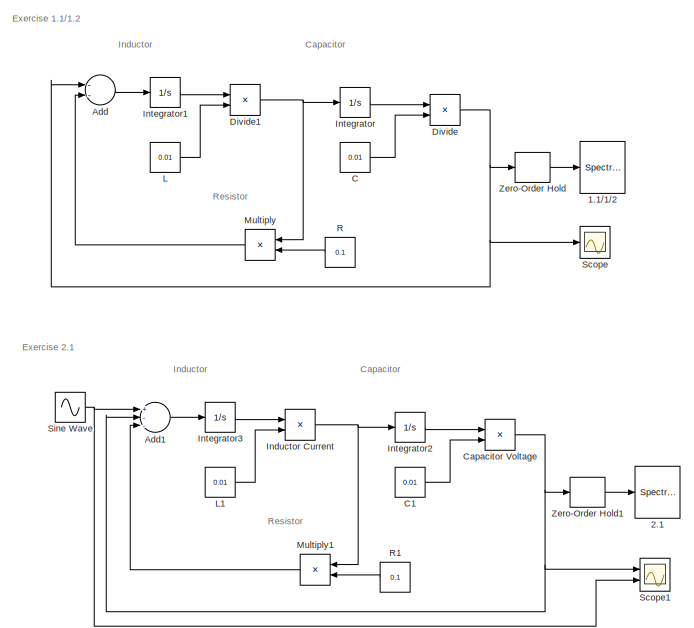
[diagram: root canvas - part 1/2, top center region]
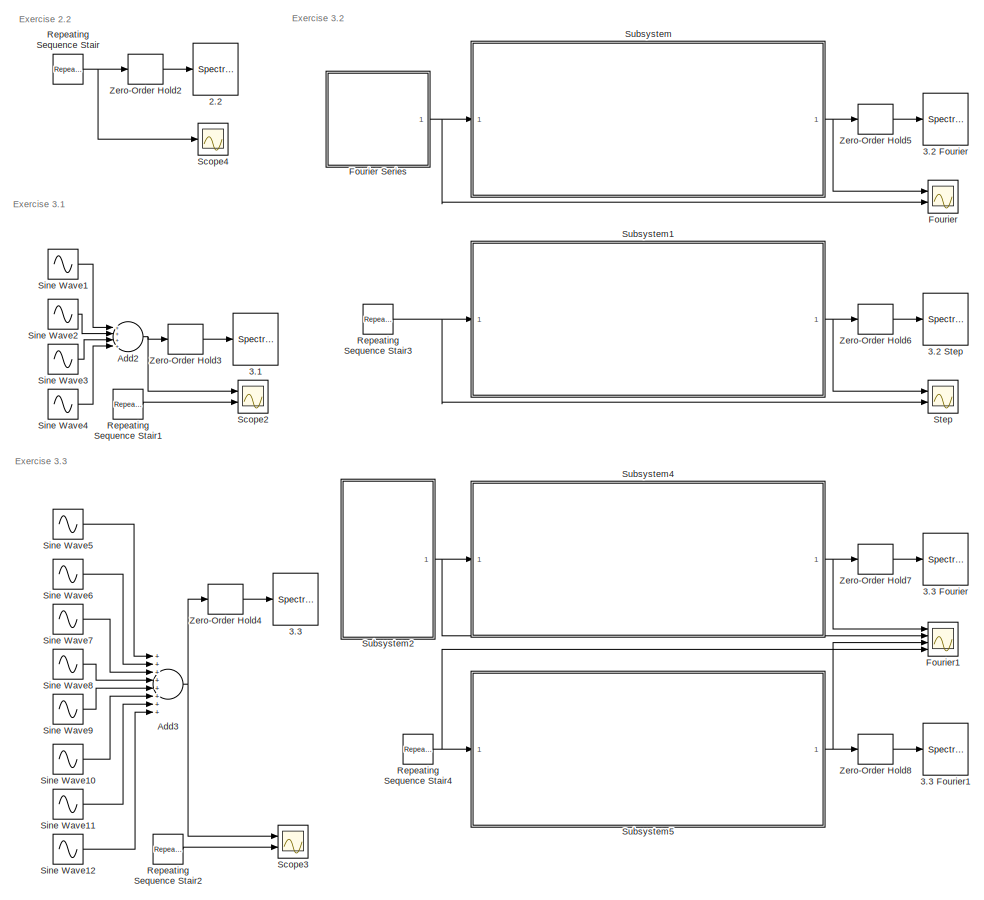
[diagram: root canvas - part 2/2, full width, bottom band]
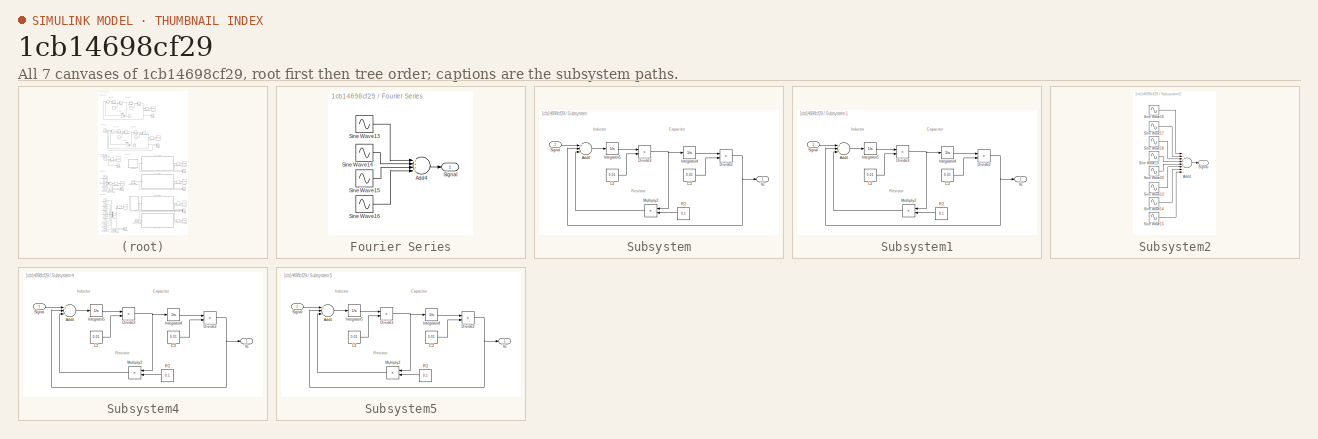
[diagram: thumbnail index - all 7 canvases of the model, root first then tree order]
MODEL slx_1cb14698cf29
KIND model
CONFIG AbsTol = auto
CONFIG EnableMultiTasking = off
CONFIG FixedStep = auto
CONFIG MaxStep = auto
CONFIG MinStep = auto
CONFIG RelTol = 1e-3
CONFIG SampleTimeConstraint = Unconstrained
CONFIG Solver = VariableStepAuto
CONFIG SolverName = VariableStepAuto
CONFIG StartTime = 0.0
CONFIG StopTime = 2
BLOCK [SpectrumAnalyzer] 1.1//1//2
  Commented = on
  Ports = [1]
  ScopeSpecificationString = spbscopes.SpectrumAnalyzerBlockCfg('CurrentConfiguration', extmgr.ConfigurationSet(extmgr.Configuration('Core','General UI',true),extmgr.Configuration('Core','Source UI',true),extmgr.Configuration('Sources','WiredSimulink',true),extmgr.Configuration('Visuals','Spectrum',true,'AxesProperties',struct('Color',{[0 0 0],[0 0 0]},'XColor',{[0.686274509803922 0.686274509803922 0.686274509803922],[0.68627...<+2005ch>
BLOCK [SpectrumAnalyzer] 2.1
  Commented = on
  Ports = [1]
  ScopeSpecificationString = spbscopes.SpectrumAnalyzerBlockCfg('CurrentConfiguration', extmgr.ConfigurationSet(extmgr.Configuration('Core','General UI',true),extmgr.Configuration('Core','Source UI',true),extmgr.Configuration('Sources','WiredSimulink',true),extmgr.Configuration('Visuals','Spectrum',true,'AxesProperties',struct('Color',{[0 0 0],[0 0 0]},'XColor',{[0.686274509803922 0.686274509803922 0.686274509803922],[0.68627...<+1916ch>
BLOCK [SpectrumAnalyzer] 2.2
  Commented = on
  Ports = [1]
  ScopeSpecificationString = spbscopes.SpectrumAnalyzerBlockCfg('CurrentConfiguration', extmgr.ConfigurationSet(extmgr.Configuration('Core','General UI',true),extmgr.Configuration('Core','Source UI',true),extmgr.Configuration('Sources','WiredSimulink',true),extmgr.Configuration('Sources','SimulinkEvent',false),extmgr.Configuration('Sources','SPTool',false),extmgr.Configuration('Sources','File',false),extmgr.Configuration('Sou...<+3307ch>
BLOCK [SpectrumAnalyzer] 3.1
  Commented = on
  Ports = [1]
  ScopeSpecificationString = spbscopes.SpectrumAnalyzerBlockCfg('CurrentConfiguration', extmgr.ConfigurationSet(extmgr.Configuration('Core','General UI',true),extmgr.Configuration('Core','Source UI',true),extmgr.Configuration('Sources','WiredSimulink',true),extmgr.Configuration('Visuals','Spectrum',true,'AxesProperties',struct('Color',{[0 0 0],[0 0 0]},'XColor',{[0.686274509803922 0.686274509803922 0.686274509803922],[0.68627...<+1917ch>
BLOCK [SpectrumAnalyzer] 3.2 Fourier
  Commented = on
  Ports = [1]
  ScopeSpecificationString = spbscopes.SpectrumAnalyzerBlockCfg('CurrentConfiguration', extmgr.ConfigurationSet(extmgr.Configuration('Core','General UI',true),extmgr.Configuration('Core','Source UI',true),extmgr.Configuration('Sources','WiredSimulink',true),extmgr.Configuration('Visuals','Spectrum',true,'AxesProperties',struct('Color',{[0 0 0],[0 0 0]},'XColor',{[0.686274509803922 0.686274509803922 0.686274509803922],[0.68627...<+1937ch>
BLOCK [SpectrumAnalyzer] 3.2 Step
  Commented = on
  Ports = [1]
  ScopeSpecificationString = spbscopes.SpectrumAnalyzerBlockCfg('CurrentConfiguration', extmgr.ConfigurationSet(extmgr.Configuration('Core','General UI',true),extmgr.Configuration('Core','Source UI',true),extmgr.Configuration('Sources','WiredSimulink',true),extmgr.Configuration('Visuals','Spectrum',true,'AxesProperties',struct('Color',{[0 0 0],[0 0 0]},'XColor',{[0.686274509803922 0.686274509803922 0.686274509803922],[0.68627...<+1938ch>
BLOCK [SpectrumAnalyzer] 3.3
  Commented = on
  Ports = [1]
  ScopeSpecificationString = spbscopes.SpectrumAnalyzerBlockCfg('CurrentConfiguration', extmgr.ConfigurationSet(extmgr.Configuration('Core','General UI',true),extmgr.Configuration('Core','Source UI',true),extmgr.Configuration('Sources','WiredSimulink',true),extmgr.Configuration('Visuals','Spectrum',true,'AxesProperties',struct('Color',{[0 0 0],[0 0 0]},'XColor',{[0.686274509803922 0.686274509803922 0.686274509803922],[0.68627...<+1689ch>
BLOCK [SpectrumAnalyzer] 3.3 Fourier
  Commented = on
  Ports = [1]
  ScopeSpecificationString = spbscopes.SpectrumAnalyzerBlockCfg('CurrentConfiguration', extmgr.ConfigurationSet(extmgr.Configuration('Core','General UI',true),extmgr.Configuration('Core','Source UI',true),extmgr.Configuration('Sources','WiredSimulink',true),extmgr.Configuration('Visuals','Spectrum',true,'AxesProperties',struct('Color',{[0 0 0],[0 0 0]},'XColor',{[0.686274509803922 0.686274509803922 0.686274509803922],[0.68627...<+1918ch>
BLOCK [SpectrumAnalyzer] 3.3 Fourier1
  Commented = on
  Ports = [1]
  ScopeSpecificationString = spbscopes.SpectrumAnalyzerBlockCfg('CurrentConfiguration', extmgr.ConfigurationSet(extmgr.Configuration('Core','General UI',true),extmgr.Configuration('Core','Source UI',true),extmgr.Configuration('Sources','WiredSimulink',true),extmgr.Configuration('Visuals','Spectrum',true,'AxesProperties',struct('Color',{[0 0 0],[0 0 0]},'XColor',{[0.686274509803922 0.686274509803922 0.686274509803922],[0.68627...<+1917ch>
BLOCK [Sum] Add
  InputSameDT = off
  Inputs = --
  OutDataTypeStr = Inherit: Inherit via internal rule
  Ports = [2, 1]
  SaturateOnIntegerOverflow = off
BLOCK [Sum] Add1
  InputSameDT = off
  Inputs = +--
  OutDataTypeStr = Inherit: Inherit via internal rule
  Ports = [3, 1]
  SaturateOnIntegerOverflow = off
BLOCK [Sum] Add2
  InputSameDT = off
  Inputs = ++++
  OutDataTypeStr = Inherit: Inherit via internal rule
  Ports = [4, 1]
  SaturateOnIntegerOverflow = off
BLOCK [Sum] Add3
  InputSameDT = off
  Inputs = ++++++++
  OutDataTypeStr = Inherit: Inherit via internal rule
  Ports = [8, 1]
  SaturateOnIntegerOverflow = off
BLOCK [Constant] C
  Value = 0.01
BLOCK [Constant] C1
  Value = 0.01
BLOCK [Product] Capacitor Voltage
  InputSameDT = off
  Inputs = */
  OutDataTypeStr = Inherit: Inherit via internal rule
  Ports = [2, 1]
  RndMeth = Floor
  SaturateOnIntegerOverflow = off
BLOCK [Product] Divide
  InputSameDT = off
  Inputs = */
  OutDataTypeStr = Inherit: Inherit via internal rule
  Ports = [2, 1]
  RndMeth = Floor
  SaturateOnIntegerOverflow = off
BLOCK [Product] Divide1
  InputSameDT = off
  Inputs = */
  OutDataTypeStr = Inherit: Inherit via internal rule
  Ports = [2, 1]
  RndMeth = Floor
  SaturateOnIntegerOverflow = off
BLOCK [Scope] Fourier
  Floating = off
  NumInputPorts = 2
  Ports = [2]
  ScopeSpecificationString = Simulink.scopes.TimeScopeBlockCfg('CurrentConfiguration', extmgr.ConfigurationSet(extmgr.Configuration('Core','General UI',true),extmgr.Configuration('Core','Source UI',true),extmgr.Configuration('Sources','WiredSimulink',true,'DataLoggingVariableName','ScopeData3'),extmgr.Configuration('Visuals','Time Domain',true,'SerializedDisplays',{struct('MinYLimReal','-7.84282','MaxYLimReal','8.91416','YLab...<+2162ch>
BLOCK [SubSystem] Fourier Series
  Ports = [0, 1]
  RequestExecContextInheritance = off
BLOCK [Sum] Fourier Series/Add4
  InputSameDT = off
  Inputs = ++++
  OutDataTypeStr = Inherit: Inherit via internal rule
  Ports = [4, 1]
  SaturateOnIntegerOverflow = off
BLOCK [Outport] Fourier Series/Signal
  IconDisplay = Port number
BLOCK [Sin] Fourier Series/Sine Wave13
  Amplitude = 4/(1*pi)
  Frequency = 64*pi*1
  Ports = [0, 1]
  SampleTime = 0
BLOCK [Sin] Fourier Series/Sine Wave14
  Amplitude = 4/(3*pi)
  Frequency = 64*pi*3
  Ports = [0, 1]
  SampleTime = 0
BLOCK [Sin] Fourier Series/Sine Wave15
  Amplitude = 4/(5*pi)
  Frequency = 64*pi*5
  Ports = [0, 1]
  SampleTime = 0
BLOCK [Sin] Fourier Series/Sine Wave16
  Amplitude = 4/(7*pi)
  Frequency = 64*pi*7
  Ports = [0, 1]
  SampleTime = 0
BLOCK [Scope] Fourier1
  Floating = off
  NumInputPorts = 4
  Ports = [4]
  ScopeSpecificationString = Simulink.scopes.TimeScopeBlockCfg('CurrentConfiguration', extmgr.ConfigurationSet(extmgr.Configuration('Core','General UI',true),extmgr.Configuration('Core','Source UI',true),extmgr.Configuration('Sources','WiredSimulink',true,'DataLoggingVariableName','ScopeData5'),extmgr.Configuration('Visuals','Time Domain',true,'SerializedDisplays',{struct('MinYLimReal','-20','MaxYLimReal','20','YLabelReal',''...<+3392ch>
BLOCK [Product] Inductor Current
  InputSameDT = off
  Inputs = */
  OutDataTypeStr = Inherit: Inherit via internal rule
  Ports = [2, 1]
  RndMeth = Floor
  SaturateOnIntegerOverflow = off
BLOCK [Integrator] Integrator
  InitialCondition = 0.1
  Ports = [1, 1]
BLOCK [Integrator] Integrator1
  InitialCondition = 0.1
  Ports = [1, 1]
BLOCK [Integrator] Integrator2
  Ports = [1, 1]
BLOCK [Integrator] Integrator3
  Ports = [1, 1]
BLOCK [Constant] L
  Value = 0.01
BLOCK [Constant] L1
  Value = 0.01
BLOCK [Product] Multiply
  InputSameDT = off
  OutDataTypeStr = Inherit: Inherit via internal rule
  Ports = [2, 1]
  RndMeth = Floor
  SaturateOnIntegerOverflow = off
BLOCK [Product] Multiply1
  InputSameDT = off
  OutDataTypeStr = Inherit: Inherit via internal rule
  Ports = [2, 1]
  RndMeth = Floor
  SaturateOnIntegerOverflow = off
BLOCK [Constant] R
  Value = 0.1
BLOCK [Constant] R1
  Value = 0.1
BLOCK [Reference] Repeating Sequence Stair  REF=simulink/Sources/Repeating
Sequence
Stair
  Ports = [0, 1]
  SourceBlock = simulink/Sources/Repeating\nSequence\nStair
  SourceProductBaseCode = SL
  SourceProductName = Simulink
  SourceType = Repeating Sequence Stair
BLOCK [Reference] Repeating Sequence Stair1  REF=simulink/Sources/Repeating
Sequence
Stair
  Ports = [0, 1]
  SourceBlock = simulink/Sources/Repeating\nSequence\nStair
  SourceProductBaseCode = SL
  SourceProductName = Simulink
  SourceType = Repeating Sequence Stair
BLOCK [Reference] Repeating Sequence Stair2  REF=simulink/Sources/Repeating
Sequence
Stair
  Ports = [0, 1]
  SourceBlock = simulink/Sources/Repeating\nSequence\nStair
  SourceProductBaseCode = SL
  SourceProductName = Simulink
  SourceType = Repeating Sequence Stair
BLOCK [Reference] Repeating Sequence Stair3  REF=simulink/Sources/Repeating
Sequence
Stair
  Ports = [0, 1]
  SourceBlock = simulink/Sources/Repeating\nSequence\nStair
  SourceProductBaseCode = SL
  SourceProductName = Simulink
  SourceType = Repeating Sequence Stair
BLOCK [Reference] Repeating Sequence Stair4  REF=simulink/Sources/Repeating
Sequence
Stair
  Ports = [0, 1]
  SourceBlock = simulink/Sources/Repeating\nSequence\nStair
  SourceProductBaseCode = SL
  SourceProductName = Simulink
  SourceType = Repeating Sequence Stair
BLOCK [Scope] Scope
  Floating = off
  NumInputPorts = 1
  Ports = [1]
  ScopeSpecificationString = Simulink.scopes.TimeScopeBlockCfg('CurrentConfiguration', extmgr.ConfigurationSet(extmgr.Configuration('Core','General UI',true),extmgr.Configuration('Core','Source UI',true),extmgr.Configuration('Sources','WiredSimulink',true),extmgr.Configuration('Visuals','Time Domain',true,'SerializedDisplays',{struct('MinYLimReal','-15.1536','MaxYLimReal','17.18331','YLabelReal','','MinYLimMag','0.00000','Max...<+1379ch>
BLOCK [Scope] Scope1
  Floating = off
  NumInputPorts = 2
  Ports = [2]
  ScopeSpecificationString = Simulink.scopes.TimeScopeBlockCfg('CurrentConfiguration', extmgr.ConfigurationSet(extmgr.Configuration('Core','General UI',true),extmgr.Configuration('Core','Source UI',true),extmgr.Configuration('Sources','WiredSimulink',true,'DataLoggingVariableName','ScopeData1'),extmgr.Configuration('Visuals','Time Domain',true,'SerializedDisplays',{struct('MinYLimReal','-12.49626','MaxYLimReal','12.49625','YL...<+2349ch>
BLOCK [Scope] Scope2
  Floating = off
  NumInputPorts = 2
  Ports = [2]
  ScopeSpecificationString = Simulink.scopes.TimeScopeBlockCfg('CurrentConfiguration', extmgr.ConfigurationSet(extmgr.Configuration('Core','General UI',true),extmgr.Configuration('Core','Source UI',true),extmgr.Configuration('Sources','WiredSimulink',true,'DataLoggingVariableName','ScopeData1'),extmgr.Configuration('Visuals','Time Domain',true,'SerializedDisplays',{struct('MinYLimReal','-2','MaxYLimReal','2','YLabelReal','','...<+2118ch>
BLOCK [Scope] Scope3
  Floating = off
  NumInputPorts = 2
  Ports = [2]
  ScopeSpecificationString = Simulink.scopes.TimeScopeBlockCfg('CurrentConfiguration', extmgr.ConfigurationSet(extmgr.Configuration('Core','General UI',true),extmgr.Configuration('Core','Source UI',true),extmgr.Configuration('Sources','WiredSimulink',true,'DataLoggingVariableName','ScopeData2'),extmgr.Configuration('Visuals','Time Domain',true,'SerializedDisplays',{struct('MinYLimReal','-1.47536','MaxYLimReal','1.47536','YLab...<+2039ch>
BLOCK [Scope] Scope4
  Floating = off
  NumInputPorts = 1
  Ports = [1]
  ScopeSpecificationString = Simulink.scopes.TimeScopeBlockCfg('CurrentConfiguration', extmgr.ConfigurationSet(extmgr.Configuration('Core','General UI',true),extmgr.Configuration('Core','Source UI',true),extmgr.Configuration('Sources','WiredSimulink',true,'DataLoggingVariableName','ScopeData1'),extmgr.Configuration('Visuals','Time Domain',true,'SerializedDisplays',{struct('MinYLimReal','-1.25','MaxYLimReal','1.25','YLabelReal...<+1365ch>
BLOCK [Sin] Sine Wave
  Frequency = 100*2
  Ports = [0, 1]
  SampleTime = 0
BLOCK [Sin] Sine Wave1
  Amplitude = 4/(1*pi)
  Frequency = 64*pi*1
  Ports = [0, 1]
  SampleTime = 0
BLOCK [Sin] Sine Wave10
  Amplitude = 4/(11*pi)
  Frequency = 64*pi*11
  Ports = [0, 1]
  SampleTime = 0
BLOCK [Sin] Sine Wave11
  Amplitude = 4/(13*pi)
  Frequency = 64*pi*13
  Ports = [0, 1]
  SampleTime = 0
BLOCK [Sin] Sine Wave12
  Amplitude = 4/(15*pi)
  Frequency = 64*pi*15
  Ports = [0, 1]
  SampleTime = 0
BLOCK [Sin] Sine Wave2
  Amplitude = 4/(3*pi)
  Frequency = 64*pi*3
  Ports = [0, 1]
  SampleTime = 0
BLOCK [Sin] Sine Wave3
  Amplitude = 4/(5*pi)
  Frequency = 64*pi*5
  Ports = [0, 1]
  SampleTime = 0
BLOCK [Sin] Sine Wave4
  Amplitude = 4/(7*pi)
  Frequency = 64*pi*7
  Ports = [0, 1]
  SampleTime = 0
BLOCK [Sin] Sine Wave5
  Amplitude = 4/(1*pi)
  Frequency = 64*pi*1
  Ports = [0, 1]
  SampleTime = 0
BLOCK [Sin] Sine Wave6
  Amplitude = 4/(3*pi)
  Frequency = 64*pi*3
  Ports = [0, 1]
  SampleTime = 0
BLOCK [Sin] Sine Wave7
  Amplitude = 4/(5*pi)
  Frequency = 64*pi*5
  Ports = [0, 1]
  SampleTime = 0
BLOCK [Sin] Sine Wave8
  Amplitude = 4/(7*pi)
  Frequency = 64*pi*7
  Ports = [0, 1]
  SampleTime = 0
BLOCK [Sin] Sine Wave9
  Amplitude = 4/(9*pi)
  Frequency = 64*pi*9
  Ports = [0, 1]
  SampleTime = 0
BLOCK [Scope] Step
  Floating = off
  NumInputPorts = 2
  Ports = [2]
  ScopeSpecificationString = Simulink.scopes.TimeScopeBlockCfg('CurrentConfiguration', extmgr.ConfigurationSet(extmgr.Configuration('Core','General UI',true),extmgr.Configuration('Core','Source UI',true),extmgr.Configuration('Sources','WiredSimulink',true,'DataLoggingVariableName','ScopeData4'),extmgr.Configuration('Visuals','Time Domain',true,'SerializedDisplays',{struct('MinYLimReal','-7.8777','MaxYLimReal','8.95609','YLabe...<+2171ch>
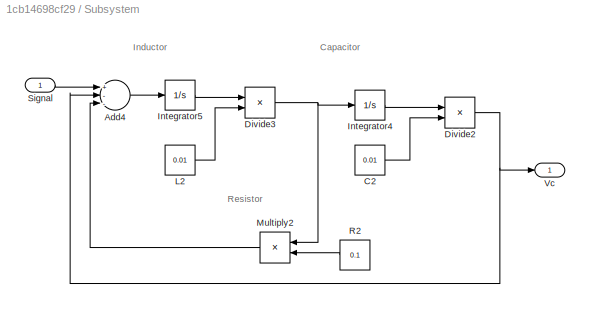
BLOCK [SubSystem] Subsystem
  Ports = [1, 1]
  RequestExecContextInheritance = off
BLOCK [Sum] Subsystem/Add4
  InputSameDT = off
  Inputs = +--
  OutDataTypeStr = Inherit: Inherit via internal rule
  Ports = [3, 1]
  SaturateOnIntegerOverflow = off
BLOCK [Constant] Subsystem/C2
  Value = 0.01
BLOCK [Product] Subsystem/Divide2
  InputSameDT = off
  Inputs = */
  OutDataTypeStr = Inherit: Inherit via internal rule
  Ports = [2, 1]
  RndMeth = Floor
  SaturateOnIntegerOverflow = off
BLOCK [Product] Subsystem/Divide3
  InputSameDT = off
  Inputs = */
  OutDataTypeStr = Inherit: Inherit via internal rule
  Ports = [2, 1]
  RndMeth = Floor
  SaturateOnIntegerOverflow = off
BLOCK [Integrator] Subsystem/Integrator4
  InitialCondition = 0.1
  Ports = [1, 1]
BLOCK [Integrator] Subsystem/Integrator5
  InitialCondition = 0.1
  Ports = [1, 1]
BLOCK [Constant] Subsystem/L2
  Value = 0.01
BLOCK [Product] Subsystem/Multiply2
  InputSameDT = off
  OutDataTypeStr = Inherit: Inherit via internal rule
  Ports = [2, 1]
  RndMeth = Floor
  SaturateOnIntegerOverflow = off
BLOCK [Constant] Subsystem/R2
  Value = 0.1
BLOCK [Inport] Subsystem/Signal
  IconDisplay = Port number
BLOCK [Outport] Subsystem/Vc
  IconDisplay = Port number
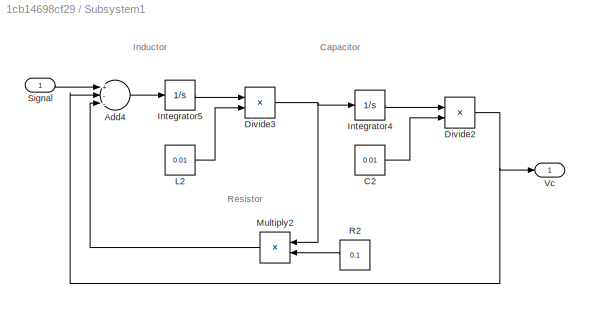
BLOCK [SubSystem] Subsystem1
  Ports = [1, 1]
  RequestExecContextInheritance = off
BLOCK [Sum] Subsystem1/Add4
  InputSameDT = off
  Inputs = +--
  OutDataTypeStr = Inherit: Inherit via internal rule
  Ports = [3, 1]
  SaturateOnIntegerOverflow = off
BLOCK [Constant] Subsystem1/C2
  Value = 0.01
BLOCK [Product] Subsystem1/Divide2
  InputSameDT = off
  Inputs = */
  OutDataTypeStr = Inherit: Inherit via internal rule
  Ports = [2, 1]
  RndMeth = Floor
  SaturateOnIntegerOverflow = off
BLOCK [Product] Subsystem1/Divide3
  InputSameDT = off
  Inputs = */
  OutDataTypeStr = Inherit: Inherit via internal rule
  Ports = [2, 1]
  RndMeth = Floor
  SaturateOnIntegerOverflow = off
BLOCK [Integrator] Subsystem1/Integrator4
  InitialCondition = 0.1
  Ports = [1, 1]
BLOCK [Integrator] Subsystem1/Integrator5
  InitialCondition = 0.1
  Ports = [1, 1]
BLOCK [Constant] Subsystem1/L2
  Value = 0.01
BLOCK [Product] Subsystem1/Multiply2
  InputSameDT = off
  OutDataTypeStr = Inherit: Inherit via internal rule
  Ports = [2, 1]
  RndMeth = Floor
  SaturateOnIntegerOverflow = off
BLOCK [Constant] Subsystem1/R2
  Value = 0.1
BLOCK [Inport] Subsystem1/Signal
  IconDisplay = Port number
BLOCK [Outport] Subsystem1/Vc
  IconDisplay = Port number
BLOCK [SubSystem] Subsystem2
  Ports = [0, 1]
  RequestExecContextInheritance = off
BLOCK [Sum] Subsystem2/Add4
  InputSameDT = off
  Inputs = ++++++++
  OutDataTypeStr = Inherit: Inherit via internal rule
  Ports = [8, 1]
  SaturateOnIntegerOverflow = off
BLOCK [Outport] Subsystem2/Signal
  IconDisplay = Port number
BLOCK [Sin] Subsystem2/Sine Wave13
  Amplitude = 4/(11*pi)
  Frequency = 64*pi*11
  Ports = [0, 1]
  SampleTime = 0
BLOCK [Sin] Subsystem2/Sine Wave14
  Amplitude = 4/(13*pi)
  Frequency = 64*pi*13
  Ports = [0, 1]
  SampleTime = 0
BLOCK [Sin] Subsystem2/Sine Wave15
  Amplitude = 4/(15*pi)
  Frequency = 64*pi*15
  Ports = [0, 1]
  SampleTime = 0
BLOCK [Sin] Subsystem2/Sine Wave16
  Amplitude = 4/(1*pi)
  Frequency = 64*pi*1
  Ports = [0, 1]
  SampleTime = 0
BLOCK [Sin] Subsystem2/Sine Wave17
  Amplitude = 4/(3*pi)
  Frequency = 64*pi*3
  Ports = [0, 1]
  SampleTime = 0
BLOCK [Sin] Subsystem2/Sine Wave18
  Amplitude = 4/(5*pi)
  Frequency = 64*pi*5
  Ports = [0, 1]
  SampleTime = 0
BLOCK [Sin] Subsystem2/Sine Wave19
  Amplitude = 4/(7*pi)
  Frequency = 64*pi*7
  Ports = [0, 1]
  SampleTime = 0
BLOCK [Sin] Subsystem2/Sine Wave20
  Amplitude = 4/(9*pi)
  Frequency = 64*pi*9
  Ports = [0, 1]
  SampleTime = 0
BLOCK [SubSystem] Subsystem4
  Ports = [1, 1]
  RequestExecContextInheritance = off
BLOCK [Sum] Subsystem4/Add4
  InputSameDT = off
  Inputs = +--
  OutDataTypeStr = Inherit: Inherit via internal rule
  Ports = [3, 1]
  SaturateOnIntegerOverflow = off
BLOCK [Constant] Subsystem4/C2
  Value = 0.01
BLOCK [Product] Subsystem4/Divide2
  InputSameDT = off
  Inputs = */
  OutDataTypeStr = Inherit: Inherit via internal rule
  Ports = [2, 1]
  RndMeth = Floor
  SaturateOnIntegerOverflow = off
BLOCK [Product] Subsystem4/Divide3
  InputSameDT = off
  Inputs = */
  OutDataTypeStr = Inherit: Inherit via internal rule
  Ports = [2, 1]
  RndMeth = Floor
  SaturateOnIntegerOverflow = off
BLOCK [Integrator] Subsystem4/Integrator4
  InitialCondition = 0.1
  Ports = [1, 1]
BLOCK [Integrator] Subsystem4/Integrator5
  InitialCondition = 0.1
  Ports = [1, 1]
BLOCK [Constant] Subsystem4/L2
  Value = 0.01
BLOCK [Product] Subsystem4/Multiply2
  InputSameDT = off
  OutDataTypeStr = Inherit: Inherit via internal rule
  Ports = [2, 1]
  RndMeth = Floor
  SaturateOnIntegerOverflow = off
BLOCK [Constant] Subsystem4/R2
  Value = 0.1
BLOCK [Inport] Subsystem4/Signal
  IconDisplay = Port number
BLOCK [Outport] Subsystem4/Vc
  IconDisplay = Port number
BLOCK [SubSystem] Subsystem5
  Ports = [1, 1]
  RequestExecContextInheritance = off
BLOCK [Sum] Subsystem5/Add4
  InputSameDT = off
  Inputs = +--
  OutDataTypeStr = Inherit: Inherit via internal rule
  Ports = [3, 1]
  SaturateOnIntegerOverflow = off
BLOCK [Constant] Subsystem5/C2
  Value = 0.01
BLOCK [Product] Subsystem5/Divide2
  InputSameDT = off
  Inputs = */
  OutDataTypeStr = Inherit: Inherit via internal rule
  Ports = [2, 1]
  RndMeth = Floor
  SaturateOnIntegerOverflow = off
BLOCK [Product] Subsystem5/Divide3
  InputSameDT = off
  Inputs = */
  OutDataTypeStr = Inherit: Inherit via internal rule
  Ports = [2, 1]
  RndMeth = Floor
  SaturateOnIntegerOverflow = off
BLOCK [Integrator] Subsystem5/Integrator4
  InitialCondition = 0.1
  Ports = [1, 1]
BLOCK [Integrator] Subsystem5/Integrator5
  InitialCondition = 0.1
  Ports = [1, 1]
BLOCK [Constant] Subsystem5/L2
  Value = 0.01
BLOCK [Product] Subsystem5/Multiply2
  InputSameDT = off
  OutDataTypeStr = Inherit: Inherit via internal rule
  Ports = [2, 1]
  RndMeth = Floor
  SaturateOnIntegerOverflow = off
BLOCK [Constant] Subsystem5/R2
  Value = 0.1
BLOCK [Inport] Subsystem5/Signal
  IconDisplay = Port number
BLOCK [Outport] Subsystem5/Vc
  IconDisplay = Port number
BLOCK [ZeroOrderHold] Zero-Order Hold
  SampleTime = 2^-10
BLOCK [ZeroOrderHold] Zero-Order Hold1
  SampleTime = 2^-10
BLOCK [ZeroOrderHold] Zero-Order Hold2
  SampleTime = 2^-10
BLOCK [ZeroOrderHold] Zero-Order Hold3
  SampleTime = 2^-10
BLOCK [ZeroOrderHold] Zero-Order Hold4
  SampleTime = 2^-10
BLOCK [ZeroOrderHold] Zero-Order Hold5
  SampleTime = 2^-10
BLOCK [ZeroOrderHold] Zero-Order Hold6
  SampleTime = 2^-10
BLOCK [ZeroOrderHold] Zero-Order Hold7
  SampleTime = 2^-10
BLOCK [ZeroOrderHold] Zero-Order Hold8
  SampleTime = 2^-10
ANNOTATION (root): Capacitor
ANNOTATION (root): Exercise 1.1/1.2
ANNOTATION (root): Exercise 2.1
ANNOTATION (root): Exercise 2.2
ANNOTATION (root): Exercise 3.1
ANNOTATION (root): Exercise 3.2
ANNOTATION (root): Exercise 3.3
ANNOTATION (root): Inductor
ANNOTATION (root): Resistor
ANNOTATION Subsystem: Capacitor
ANNOTATION Subsystem: Inductor
ANNOTATION Subsystem: Resistor
ANNOTATION Subsystem1: Capacitor
ANNOTATION Subsystem1: Inductor
ANNOTATION Subsystem1: Resistor
ANNOTATION Subsystem4: Capacitor
ANNOTATION Subsystem4: Inductor
ANNOTATION Subsystem4: Resistor
ANNOTATION Subsystem5: Capacitor
ANNOTATION Subsystem5: Inductor
ANNOTATION Subsystem5: Resistor
LINE Add1:1 -> Integrator3:1
NET Add2:1 -> Scope2:1, Zero-Order Hold3:1
NET Add3:1 -> Scope3:1, Zero-Order Hold4:1
LINE Add:1 -> Integrator1:1
LINE C1:1 -> Capacitor Voltage:2
LINE C:1 -> Divide:2
NET Capacitor Voltage:1 -> Add1:2, Scope1:1, Zero-Order Hold1:1
NET Divide1:1 -> Integrator:1, Multiply:1
NET Divide:1 -> Add:1, Scope:1, Zero-Order Hold:1
LINE Fourier Series/Add4:1 -> Fourier Series/Signal:1
LINE Fourier Series/Sine Wave13:1 -> Fourier Series/Add4:1
LINE Fourier Series/Sine Wave14:1 -> Fourier Series/Add4:2
LINE Fourier Series/Sine Wave15:1 -> Fourier Series/Add4:3
LINE Fourier Series/Sine Wave16:1 -> Fourier Series/Add4:4
NET Fourier Series:1 -> Fourier:2, Subsystem:1
NET Inductor Current:1 -> Integrator2:1, Multiply1:1
LINE Integrator1:1 -> Divide1:1
LINE Integrator2:1 -> Capacitor Voltage:1
LINE Integrator3:1 -> Inductor Current:1
LINE Integrator:1 -> Divide:1
LINE L1:1 -> Inductor Current:2
LINE L:1 -> Divide1:2
LINE Multiply1:1 -> Add1:3
LINE Multiply:1 -> Add:2
LINE R1:1 -> Multiply1:2
LINE R:1 -> Multiply:2
LINE Repeating Sequence Stair1:1 -> Scope2:2
LINE Repeating Sequence Stair2:1 -> Scope3:2
NET Repeating Sequence Stair3:1 -> Step:2, Subsystem1:1
NET Repeating Sequence Stair4:1 -> Fourier1:4, Subsystem5:1
NET Repeating Sequence Stair:1 -> Scope4:1, Zero-Order Hold2:1
LINE Sine Wave10:1 -> Add3:6
LINE Sine Wave11:1 -> Add3:7
LINE Sine Wave12:1 -> Add3:8
LINE Sine Wave1:1 -> Add2:1
LINE Sine Wave2:1 -> Add2:2
LINE Sine Wave3:1 -> Add2:3
LINE Sine Wave4:1 -> Add2:4
LINE Sine Wave5:1 -> Add3:1
LINE Sine Wave6:1 -> Add3:2
LINE Sine Wave7:1 -> Add3:3
LINE Sine Wave8:1 -> Add3:4
LINE Sine Wave9:1 -> Add3:5
NET Sine Wave:1 -> Add1:1, Scope1:2
LINE Subsystem/Add4:1 -> Subsystem/Integrator5:1
LINE Subsystem/C2:1 -> Subsystem/Divide2:2
NET Subsystem/Divide2:1 -> Subsystem/Add4:2, Subsystem/Vc:1
NET Subsystem/Divide3:1 -> Subsystem/Integrator4:1, Subsystem/Multiply2:1
LINE Subsystem/Integrator4:1 -> Subsystem/Divide2:1
LINE Subsystem/Integrator5:1 -> Subsystem/Divide3:1
LINE Subsystem/L2:1 -> Subsystem/Divide3:2
LINE Subsystem/Multiply2:1 -> Subsystem/Add4:3
LINE Subsystem/R2:1 -> Subsystem/Multiply2:2
LINE Subsystem/Signal:1 -> Subsystem/Add4:1
LINE Subsystem1/Add4:1 -> Subsystem1/Integrator5:1
LINE Subsystem1/C2:1 -> Subsystem1/Divide2:2
NET Subsystem1/Divide2:1 -> Subsystem1/Add4:2, Subsystem1/Vc:1
NET Subsystem1/Divide3:1 -> Subsystem1/Integrator4:1, Subsystem1/Multiply2:1
LINE Subsystem1/Integrator4:1 -> Subsystem1/Divide2:1
LINE Subsystem1/Integrator5:1 -> Subsystem1/Divide3:1
LINE Subsystem1/L2:1 -> Subsystem1/Divide3:2
LINE Subsystem1/Multiply2:1 -> Subsystem1/Add4:3
LINE Subsystem1/R2:1 -> Subsystem1/Multiply2:2
LINE Subsystem1/Signal:1 -> Subsystem1/Add4:1
NET Subsystem1:1 -> Step:1, Zero-Order Hold6:1
LINE Subsystem2/Add4:1 -> Subsystem2/Signal:1
LINE Subsystem2/Sine Wave13:1 -> Subsystem2/Add4:6
LINE Subsystem2/Sine Wave14:1 -> Subsystem2/Add4:7
LINE Subsystem2/Sine Wave15:1 -> Subsystem2/Add4:8
LINE Subsystem2/Sine Wave16:1 -> Subsystem2/Add4:1
LINE Subsystem2/Sine Wave17:1 -> Subsystem2/Add4:2
LINE Subsystem2/Sine Wave18:1 -> Subsystem2/Add4:3
LINE Subsystem2/Sine Wave19:1 -> Subsystem2/Add4:4
LINE Subsystem2/Sine Wave20:1 -> Subsystem2/Add4:5
NET Subsystem2:1 -> Fourier1:2, Subsystem4:1
LINE Subsystem4/Add4:1 -> Subsystem4/Integrator5:1
LINE Subsystem4/C2:1 -> Subsystem4/Divide2:2
NET Subsystem4/Divide2:1 -> Subsystem4/Add4:2, Subsystem4/Vc:1
NET Subsystem4/Divide3:1 -> Subsystem4/Integrator4:1, Subsystem4/Multiply2:1
LINE Subsystem4/Integrator4:1 -> Subsystem4/Divide2:1
LINE Subsystem4/Integrator5:1 -> Subsystem4/Divide3:1
LINE Subsystem4/L2:1 -> Subsystem4/Divide3:2
LINE Subsystem4/Multiply2:1 -> Subsystem4/Add4:3
LINE Subsystem4/R2:1 -> Subsystem4/Multiply2:2
LINE Subsystem4/Signal:1 -> Subsystem4/Add4:1
NET Subsystem4:1 -> Fourier1:1, Zero-Order Hold7:1
LINE Subsystem5/Add4:1 -> Subsystem5/Integrator5:1
LINE Subsystem5/C2:1 -> Subsystem5/Divide2:2
NET Subsystem5/Divide2:1 -> Subsystem5/Add4:2, Subsystem5/Vc:1
NET Subsystem5/Divide3:1 -> Subsystem5/Integrator4:1, Subsystem5/Multiply2:1
LINE Subsystem5/Integrator4:1 -> Subsystem5/Divide2:1
LINE Subsystem5/Integrator5:1 -> Subsystem5/Divide3:1
LINE Subsystem5/L2:1 -> Subsystem5/Divide3:2
LINE Subsystem5/Multiply2:1 -> Subsystem5/Add4:3
LINE Subsystem5/R2:1 -> Subsystem5/Multiply2:2
LINE Subsystem5/Signal:1 -> Subsystem5/Add4:1
NET Subsystem5:1 -> Fourier1:3, Zero-Order Hold8:1
NET Subsystem:1 -> Fourier:1, Zero-Order Hold5:1
LINE Zero-Order Hold1:1 -> 2.1:1
LINE Zero-Order Hold2:1 -> 2.2:1
LINE Zero-Order Hold3:1 -> 3.1:1
LINE Zero-Order Hold4:1 -> 3.3:1
LINE Zero-Order Hold5:1 -> 3.2 Fourier:1
LINE Zero-Order Hold6:1 -> 3.2 Step:1
LINE Zero-Order Hold7:1 -> 3.3 Fourier:1
LINE Zero-Order Hold8:1 -> 3.3 Fourier1:1
LINE Zero-Order Hold:1 -> 1.1//1//2:1
note: NET lines group one-source signal fan-out (src -> all destinations, sorted); 1:1 wires keep LINE
